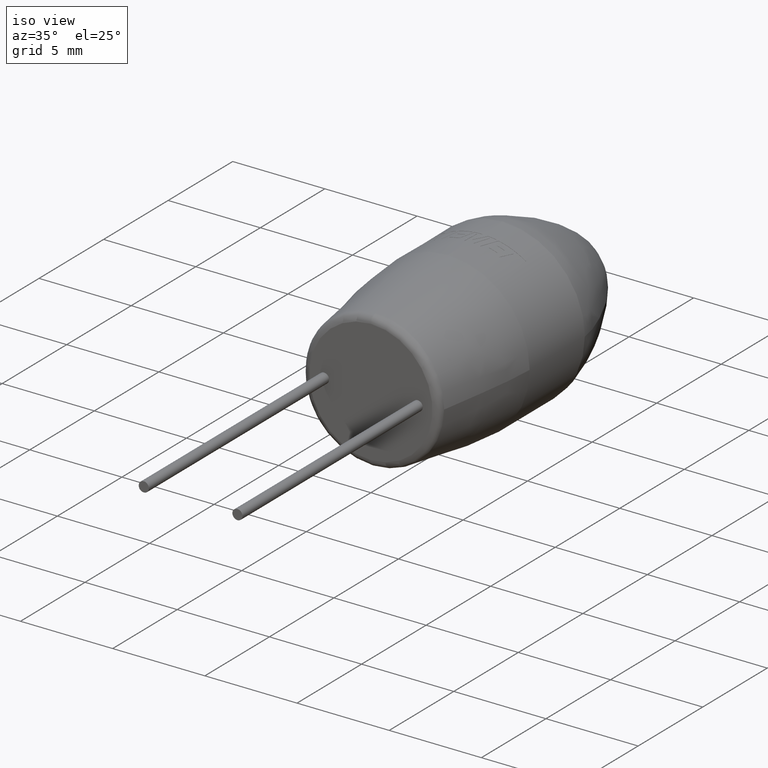
[diagram: clean part render]
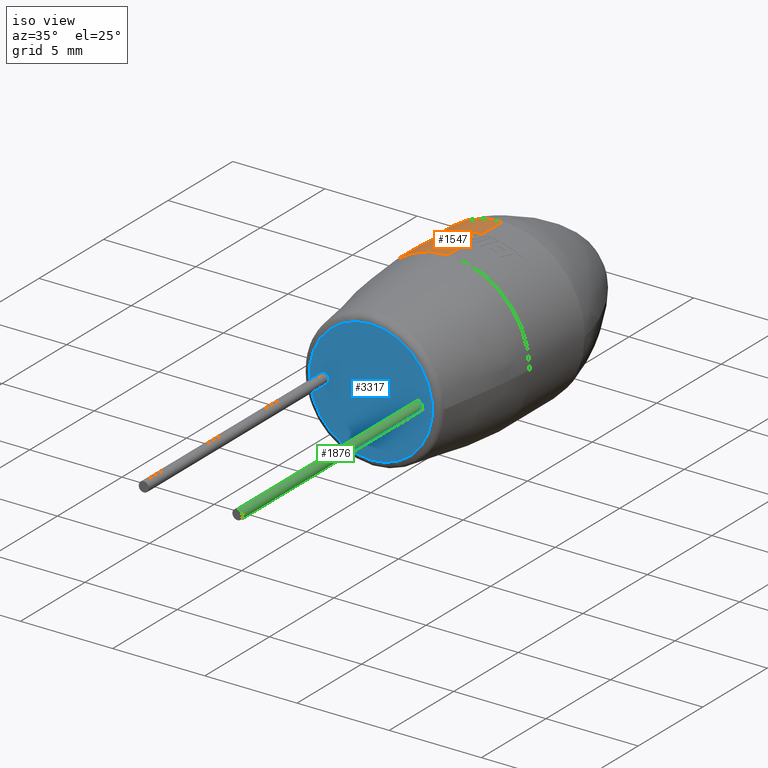
[diagram: same view with three faces highlighted in distinct colors, each labeled with its STEP entity id]
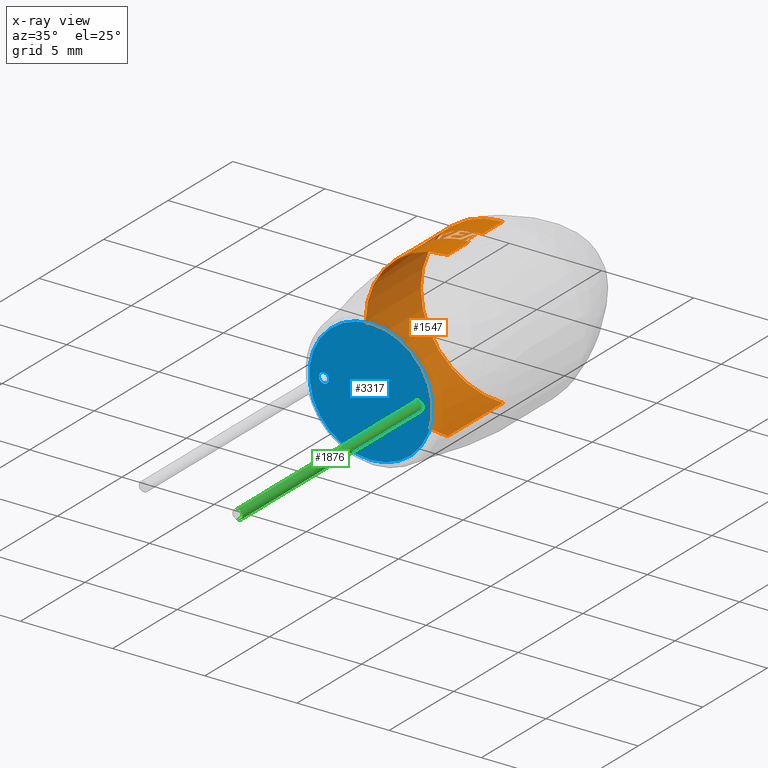
[diagram: x-ray of the same camera — body ghosted, the three highlighted faces saturated]
A machine part, iso view with three faces highlighted in distinct colors.
The next image is the same camera in x-ray (body ghosted, the three faces saturated) — at least one of them is partly hidden behind the body in this view.
Their STEP definitions:

[orange] entity #1547 — the highlighted cylindrical surface (partial cylindrical patch) has radius 4.45 mm, axis along (-0, -1, -0).
#33 = CARTESIAN_POINT ( 'NONE',  ( -0.5621267139184397100, 8.068629355989179100, 4.415045917660143500 ) ) ;
#45 = CARTESIAN_POINT ( 'NONE',  ( -0.6395254324789062500, 7.796533146831032800, 4.403805992685493100 ) ) ;
#47 = EDGE_CURVE ( 'NONE', #1267, #3529, #2072, .T. ) ;
#52 = ORIENTED_EDGE ( 'NONE', *, *, #1527, .F. ) ;
#58 = DIRECTION ( 'NONE',  ( -0.5562520025263191200, 0.0000000000000000000, 0.8310136639583370900 ) ) ;
#65 = DIRECTION ( 'NONE',  ( -0.3397254897050239800, 0.0000000000000000000, 0.9405246363836949900 ) ) ;
#80 = CIRCLE ( 'NONE', #2264, 4.450000000000001100 ) ;
#92 = AXIS2_PLACEMENT_3D ( 'NONE', #1377, #3136, #2502 ) ;
#104 = EDGE_CURVE ( 'NONE', #3537, #3347, #2660, .T. ) ;
#118 = DIRECTION ( 'NONE',  ( -0.4266863032263003000, 0.0000000000000000000, 0.9043996896500317000 ) ) ;
#132 = CARTESIAN_POINT ( 'NONE',  ( 0.0000000000000000000, 7.604746150764514200, 0.0000000000000000000 ) ) ;
#134 = CARTESIAN_POINT ( 'NONE',  ( -1.898754049357035800, 7.604746150764514200, 4.024578618942642000 ) ) ;
#139 = CARTESIAN_POINT ( 'NONE',  ( -1.698755351915376400, 8.612821759519611900, 4.112995289851285800 ) ) ;
#147 = LINE ( 'NONE', #283, #1661 ) ;
#152 = VERTEX_POINT ( 'NONE', #1389 ) ;
#178 = EDGE_CURVE ( 'NONE', #1137, #1852, #3292, .T. ) ;
#183 = DIRECTION ( 'NONE',  ( -0.0000000000000000000, -1.000000000000000000, -0.0000000000000000000 ) ) ;
#198 = CARTESIAN_POINT ( 'NONE',  ( -1.047900918710713600, 8.295938474304229300, 4.324897041241810000 ) ) ;
#218 = DIRECTION ( 'NONE',  ( -0.05594639297538302900, 0.0000000000000000000, 0.9984337740246189700 ) ) ;
#231 = AXIS2_PLACEMENT_3D ( 'NONE', #3198, #2949, #58 ) ;
#233 = CARTESIAN_POINT ( 'NONE',  ( -0.6395254324789062500, 7.796533146831032800, 4.403805992685493100 ) ) ;
#234 = EDGE_CURVE ( 'NONE', #1987, #1770, #147, .T. ) ;
#238 = LINE ( 'NONE', #927, #2197 ) ;
#240 = CARTESIAN_POINT ( 'NONE',  ( -0.4556739239771785400, 7.604746150764514200, 4.426608326360853800 ) ) ;
#251 = CARTESIAN_POINT ( 'NONE',  ( -1.387696346915203900, 8.612821759519613700, 4.228096362283882700 ) ) ;
#258 = EDGE_CURVE ( 'NONE', #3182, #1364, #3125, .T. ) ;
#271 = CARTESIAN_POINT ( 'NONE',  ( 0.0000000000000000000, 10.22080000000000200, -4.449999999999999300 ) ) ;
#282 = CARTESIAN_POINT ( 'NONE',  ( -2.232141772075821900, 7.604746150764514200, 3.849680910069588800 ) ) ;
#283 = CARTESIAN_POINT ( 'NONE',  ( 5.449678256205721800E-016, 16.00000000000000000, 4.450000000000000200 ) ) ;
#286 = DIRECTION ( 'NONE',  ( -0.0000000000000000000, -1.000000000000000000, -0.0000000000000000000 ) ) ;
#333 = CIRCLE ( 'NONE', #3342, 4.450000000000001100 ) ;
#338 = AXIS2_PLACEMENT_3D ( 'NONE', #3437, #1707, #3704 ) ;
#342 = ORIENTED_EDGE ( 'NONE', *, *, #3127, .F. ) ;
#351 = FACE_BOUND ( 'NONE', #972, .T. ) ;
#365 = VERTEX_POINT ( 'NONE', #2641 ) ;
#368 = CARTESIAN_POINT ( 'NONE',  ( -0.4065480998616298200, 8.612821759519611900, 4.431390147854157700 ) ) ;
#374 = DIRECTION ( 'NONE',  ( -0.2665297871592701200, 0.0000000000000000000, 0.9638266818037537500 ) ) ;
#381 = EDGE_CURVE ( 'NONE', #1364, #1814, #2843, .T. ) ;
#426 = VERTEX_POINT ( 'NONE', #3531 ) ;
#430 = CARTESIAN_POINT ( 'NONE',  ( -1.687521355683040800, 7.787198721629638800, 4.118311695557056700 ) ) ;
#447 = CARTESIAN_POINT ( 'NONE',  ( -0.6761975463489665600, 8.109198773325186200, 4.398360114732783500 ) ) ;
#457 = CARTESIAN_POINT ( 'NONE',  ( -1.030216690381572200, 8.358439108910648200, 4.329143601641802300 ) ) ;
#468 = DIRECTION ( 'NONE',  ( 0.0000000000000000000, 0.0000000000000000000, -1.000000000000000000 ) ) ;
#478 = ORIENTED_EDGE ( 'NONE', *, *, #3522, .F. ) ;
#482 = ORIENTED_EDGE ( 'NONE', *, *, #2189, .F. ) ;
#483 = CARTESIAN_POINT ( 'NONE',  ( -2.232141772075821900, 7.604746150764514200, 3.849680910069588800 ) ) ;
#488 = EDGE_CURVE ( 'NONE', #3529, #2733, #238, .T. ) ;
#520 = B_SPLINE_CURVE_WITH_KNOTS ( 'NONE', 3,
 ( #2146, #430, #724, #2736 ),
 .UNSPECIFIED., .F., .F.,
 ( 4, 4 ),
 ( 0.0000000000000000000, 1.000000000000000000 ),
 .UNSPECIFIED. ) ;
#592 = CARTESIAN_POINT ( 'NONE',  ( -1.898754049357035800, 7.604746150764514200, 4.024578618942642000 ) ) ;
#608 = ORIENTED_EDGE ( 'NONE', *, *, #258, .T. ) ;
#610 = DIRECTION ( 'NONE',  ( 0.0000000000000000000, 0.0000000000000000000, -1.000000000000000000 ) ) ;
#678 = CIRCLE ( 'NONE', #1124, 4.450000000000000200 ) ;
#719 = DIRECTION ( 'NONE',  ( 0.0000000000000000000, 0.0000000000000000000, -1.000000000000000000 ) ) ;
#723 = CARTESIAN_POINT ( 'NONE',  ( -1.328820224168002300, 8.276796542354757600, 4.248068578082507200 ) ) ;
#724 = CARTESIAN_POINT ( 'NONE',  ( -1.757278314460375600, 7.969651275844523900, 4.089033195411315300 ) ) ;
#726 = DIRECTION ( 'NONE',  ( 0.0000000000000000000, 0.0000000000000000000, -1.000000000000000000 ) ) ;
#735 = CARTESIAN_POINT ( 'NONE',  ( -1.420834840945337300, 7.940771367929372100, 4.218184228670634400 ) ) ;
#738 = FACE_OUTER_BOUND ( 'NONE', #1619, .T. ) ;
#804 = CARTESIAN_POINT ( 'NONE',  ( -1.976625395095432200, 8.612821759519611900, 3.986910087707499900 ) ) ;
#811 = AXIS2_PLACEMENT_3D ( 'NONE', #1891, #183, #2177 ) ;
#859 = DIRECTION ( 'NONE',  ( -0.0000000000000000000, -1.000000000000000000, -0.0000000000000000000 ) ) ;
#860 = CIRCLE ( 'NONE', #3489, 4.449999999999999300 ) ;
#876 = EDGE_CURVE ( 'NONE', #2389, #2911, #1918, .T. ) ;
#886 = EDGE_CURVE ( 'NONE', #2174, #2733, #678, .T. ) ;
#926 = ORIENTED_EDGE ( 'NONE', *, *, #3261, .T. ) ;
#927 = CARTESIAN_POINT ( 'NONE',  ( 0.0000000000000000000, 16.00000000000000000, -4.450000000000000200 ) ) ;
#935 = ORIENTED_EDGE ( 'NONE', *, *, #3194, .F. ) ;
#941 = B_SPLINE_CURVE_WITH_KNOTS ( 'NONE', 3,
 ( #2509, #2805, #1937, #251 ),
 .UNSPECIFIED., .F., .F.,
 ( 4, 4 ),
 ( 0.0000000000000000000, 1.000000000000000000 ),
 .UNSPECIFIED. ) ;
#954 = EDGE_CURVE ( 'NONE', #2452, #2389, #941, .T. ) ;
#966 = VECTOR ( 'NONE', #3006, 1000.000000000000000 ) ;
#968 = ORIENTED_EDGE ( 'NONE', *, *, #178, .F. ) ;
#972 = EDGE_LOOP ( 'NONE', ( #2658, #935, #2160, #2783, #968, #478, #1237, #1323, #1247, #2771, #1315 ) ) ;
#987 = ORIENTED_EDGE ( 'NONE', *, *, #104, .T. ) ;
#1018 = ORIENTED_EDGE ( 'NONE', *, *, #1379, .F. ) ;
#1019 = DIRECTION ( 'NONE',  ( -0.0000000000000000000, -1.000000000000000000, -0.0000000000000000000 ) ) ;
#1022 = EDGE_CURVE ( 'NONE', #2498, #3347, #3694, .T. ) ;
#1040 = EDGE_CURVE ( 'NONE', #1987, #1267, #860, .T. ) ;
#1056 = DIRECTION ( 'NONE',  ( -0.0000000000000000000, -1.000000000000000000, -0.0000000000000000000 ) ) ;
#1061 = ORIENTED_EDGE ( 'NONE', *, *, #47, .T. ) ;
#1098 = DIRECTION ( 'NONE',  ( -0.0000000000000000000, -1.000000000000000000, -0.0000000000000000000 ) ) ;
#1124 = AXIS2_PLACEMENT_3D ( 'NONE', #2522, #3344, #2495 ) ;
#1137 = VERTEX_POINT ( 'NONE', #2490 ) ;
#1138 = DIRECTION ( 'NONE',  ( -0.0000000000000000000, -1.000000000000000000, -0.0000000000000000000 ) ) ;
#1160 = CARTESIAN_POINT ( 'NONE',  ( 0.0000000000000000000, 5.948800000000001200, 0.0000000000000000000 ) ) ;
#1162 = CIRCLE ( 'NONE', #92, 4.449999999999999300 ) ;
#1182 = B_SPLINE_CURVE_WITH_KNOTS ( 'NONE', 3,
 ( #2169, #1296, #3029, #2699 ),
 .UNSPECIFIED., .F., .F.,
 ( 4, 4 ),
 ( 0.0000000000000000000, 1.000000000000000000 ),
 .UNSPECIFIED. ) ;
#1188 = CARTESIAN_POINT ( 'NONE',  ( -2.086255536277329600, 8.182939345841527200, 3.930653614521660200 ) ) ;
#1196 = VERTEX_POINT ( 'NONE', #282 ) ;
#1206 = AXIS2_PLACEMENT_3D ( 'NONE', #2556, #286, #2272 ) ;
#1237 = ORIENTED_EDGE ( 'NONE', *, *, #1968, .F. ) ;
#1242 = CARTESIAN_POINT ( 'NONE',  ( -1.826243906166388900, 8.152103846709648500, 4.057996204432691400 ) ) ;
#1247 = ORIENTED_EDGE ( 'NONE', *, *, #954, .F. ) ;
#1267 = VERTEX_POINT ( 'NONE', #3178 ) ;
#1280 = EDGE_CURVE ( 'NONE', #2203, #2023, #2991, .T. ) ;
#1286 = VERTEX_POINT ( 'NONE', #2048 ) ;
#1294 = AXIS2_PLACEMENT_3D ( 'NONE', #1343, #2261, #1356 ) ;
#1296 = CARTESIAN_POINT ( 'NONE',  ( -1.830748289640348600, 8.469527434549709400, 4.058479372964973700 ) ) ;
#1303 = CARTESIAN_POINT ( 'NONE',  ( 5.449678256205721800E-016, 16.00000000000000000, 4.450000000000000200 ) ) ;
#1315 = ORIENTED_EDGE ( 'NONE', *, *, #2457, .T. ) ;
#1321 = EDGE_CURVE ( 'NONE', #1584, #2206, #2672, .T. ) ;
#1323 = ORIENTED_EDGE ( 'NONE', *, *, #876, .F. ) ;
#1326 = CARTESIAN_POINT ( 'NONE',  ( -1.065558450357199800, 8.233437839687640600, 4.320542233200869800 ) ) ;
#1343 = CARTESIAN_POINT ( 'NONE',  ( 0.0000000000000000000, 8.612821759519611900, 0.0000000000000000000 ) ) ;
#1344 = DIRECTION ( 'NONE',  ( -0.0000000000000000000, -1.000000000000000000, -0.0000000000000000000 ) ) ;
#1356 = DIRECTION ( 'NONE',  ( -0.2777370637765972400, 0.0000000000000000000, 0.9606571310331039100 ) ) ;
#1364 = VERTEX_POINT ( 'NONE', #3310 ) ;
#1377 = CARTESIAN_POINT ( 'NONE',  ( 0.0000000000000000000, 8.612821759519611900, 0.0000000000000000000 ) ) ;
#1379 = EDGE_CURVE ( 'NONE', #3085, #1814, #2822, .T. ) ;
#1389 = CARTESIAN_POINT ( 'NONE',  ( -1.065558450357199800, 8.233437839687640600, 4.320542233200869800 ) ) ;
#1398 = CARTESIAN_POINT ( 'NONE',  ( 5.449678256205721800E-016, 7.604746150764514200, 4.450000000000000200 ) ) ;
#1406 = CARTESIAN_POINT ( 'NONE',  ( -0.5606697076283740900, 8.420939743527235100, 4.414538421958508400 ) ) ;
#1419 = CARTESIAN_POINT ( 'NONE',  ( -0.5606697076283740900, 8.420939743527235100, 4.414538421958508400 ) ) ;
#1441 = CARTESIAN_POINT ( 'NONE',  ( -0.6937238007929713600, 8.047079240139549200, 4.395594076824354900 ) ) ;
#1483 = VERTEX_POINT ( 'NONE', #3051 ) ;
#1485 = EDGE_CURVE ( 'NONE', #152, #3229, #1636, .T. ) ;
#1493 = CARTESIAN_POINT ( 'NONE',  ( 0.0000000000000000000, 7.604746150764514200, 0.0000000000000000000 ) ) ;
#1500 = CYLINDRICAL_SURFACE ( 'NONE', #2423, 4.450000000000000200 ) ;
#1505 = DIRECTION ( 'NONE',  ( -0.0000000000000000000, -1.000000000000000000, -0.0000000000000000000 ) ) ;
#1525 = CARTESIAN_POINT ( 'NONE',  ( -1.186057552858750700, 7.796533146831032800, 4.289028734026704400 ) ) ;
#1527 = EDGE_CURVE ( 'NONE', #2721, #152, #2670, .T. ) ;
#1533 = CARTESIAN_POINT ( 'NONE',  ( -2.475321411242119600, 7.604746150764514200, 3.698010804614599400 ) ) ;
#1535 = CARTESIAN_POINT ( 'NONE',  ( -1.117102663520527000, 8.047079240139549200, 4.307502947086089900 ) ) ;
#1537 = ORIENTED_EDGE ( 'NONE', *, *, #1922, .F. ) ;
#1541 = CARTESIAN_POINT ( 'NONE',  ( -0.6410966621337211800, 8.233437839687640600, 4.403577530803904200 ) ) ;
#1547 = ADVANCED_FACE ( 'NONE', ( #738, #351 ), #1500, .T. ) ;
#1569 = CARTESIAN_POINT ( 'NONE',  ( 5.449678256205721800E-016, 10.22080000000000200, 4.449999999999999300 ) ) ;
#1578 = CARTESIAN_POINT ( 'NONE',  ( -1.511778429187356800, 7.604746150764514200, 4.185334631907442900 ) ) ;
#1584 = VERTEX_POINT ( 'NONE', #233 ) ;
#1597 = CARTESIAN_POINT ( 'NONE',  ( -0.1987200116109789400, 8.502209368167374500, 4.445560747193241900 ) ) ;
#1602 = CARTESIAN_POINT ( 'NONE',  ( -0.3702294674743352700, 7.903900564432735400, 4.435403956763680700 ) ) ;
#1619 = EDGE_LOOP ( 'NONE', ( #2181, #3160, #1061, #2123, #3593, #2162, #2265, #987, #2951, #2134, #608, #2946, #1018, #482, #342, #2637, #3683, #52, #2998, #926, #1537, #3257, #2802, #2762 ) ) ;
#1636 = B_SPLINE_CURVE_WITH_KNOTS ( 'NONE', 3,
 ( #1326, #198, #457, #2772 ),
 .UNSPECIFIED., .F., .F.,
 ( 4, 4 ),
 ( 0.0000000000000000000, 1.000000000000000000 ),
 .UNSPECIFIED. ) ;
#1652 = CARTESIAN_POINT ( 'NONE',  ( -2.475321411242119600, 7.604746150764514200, 3.698010804614599400 ) ) ;
#1661 = VECTOR ( 'NONE', #859, 1000.000000000000000 ) ;
#1677 = DIRECTION ( 'NONE',  ( -0.2510343064091071200, 0.0000000000000000000, 0.9679781903564245200 ) ) ;
#1678 = B_SPLINE_CURVE_WITH_KNOTS ( 'NONE', 3,
 ( #1829, #3549, #2692, #1533 ),
 .UNSPECIFIED., .F., .F.,
 ( 4, 4 ),
 ( 0.0000000000000000000, 1.000000000000000000 ),
 .UNSPECIFIED. ) ;
#1701 = AXIS2_PLACEMENT_3D ( 'NONE', #1160, #3172, #610 ) ;
#1707 = DIRECTION ( 'NONE',  ( -0.0000000000000000000, -1.000000000000000000, -0.0000000000000000000 ) ) ;
#1770 = VERTEX_POINT ( 'NONE', #2233 ) ;
#1814 = VERTEX_POINT ( 'NONE', #2848 ) ;
#1829 = CARTESIAN_POINT ( 'NONE',  ( -2.229500193622778500, 8.612821759519611900, 3.851211353150589800 ) ) ;
#1836 = CARTESIAN_POINT ( 'NONE',  ( -0.6937238007929713600, 8.047079240139549200, 4.395594076824354900 ) ) ;
#1852 = VERTEX_POINT ( 'NONE', #2295 ) ;
#1891 = CARTESIAN_POINT ( 'NONE',  ( 0.0000000000000000000, 8.612821759519611900, 0.0000000000000000000 ) ) ;
#1918 = CIRCLE ( 'NONE', #811, 4.449999999999999300 ) ;
#1922 = EDGE_CURVE ( 'NONE', #2206, #365, #2508, .T. ) ;
#1937 = CARTESIAN_POINT ( 'NONE',  ( -1.536740987953565600, 8.459248823334821300, 4.179178673051156400 ) ) ;
#1968 = EDGE_CURVE ( 'NONE', #2911, #2342, #1182, .T. ) ;
#1984 = CARTESIAN_POINT ( 'NONE',  ( -0.5426482965219773200, 8.484900415528002800, 4.416827236400764400 ) ) ;
#1987 = VERTEX_POINT ( 'NONE', #1569 ) ;
#2011 = EDGE_CURVE ( 'NONE', #3537, #1286, #3380, .T. ) ;
#2023 = VERTEX_POINT ( 'NONE', #134 ) ;
#2034 = AXIS2_PLACEMENT_3D ( 'NONE', #3329, #1344, #2192 ) ;
#2036 = CARTESIAN_POINT ( 'NONE',  ( -2.095062981416983700, 8.152103846709637800, 3.925966263723643200 ) ) ;
#2048 = CARTESIAN_POINT ( 'NONE',  ( 5.449678256205721800E-016, 5.948800000000001200, 4.450000000000000200 ) ) ;
#2051 = AXIS2_PLACEMENT_3D ( 'NONE', #1493, #1505, #65 ) ;
#2069 = CARTESIAN_POINT ( 'NONE',  ( 0.0000000000000000000, 7.796533146831032800, 0.0000000000000000000 ) ) ;
#2070 = EDGE_CURVE ( 'NONE', #3597, #2721, #3611, .T. ) ;
#2072 = CIRCLE ( 'NONE', #2760, 4.449999999999999300 ) ;
#2105 = CARTESIAN_POINT ( 'NONE',  ( -0.2489614487404544800, 7.604746150764514200, 4.443030294409554800 ) ) ;
#2115 = EDGE_CURVE ( 'NONE', #1483, #2452, #520, .T. ) ;
#2117 = CARTESIAN_POINT ( 'NONE',  ( -1.140136528040980300, 7.963563875690619300, 4.301529372204527100 ) ) ;
#2123 = ORIENTED_EDGE ( 'NONE', *, *, #488, .T. ) ;
#2134 = ORIENTED_EDGE ( 'NONE', *, *, #2165, .F. ) ;
#2146 = CARTESIAN_POINT ( 'NONE',  ( -1.617063647199739500, 7.604746150764514200, 4.145793670807205600 ) ) ;
#2149 = CIRCLE ( 'NONE', #1701, 4.450000000000000200 ) ;
#2160 = ORIENTED_EDGE ( 'NONE', *, *, #3369, .T. ) ;
#2162 = ORIENTED_EDGE ( 'NONE', *, *, #2782, .F. ) ;
#2165 = EDGE_CURVE ( 'NONE', #3182, #2498, #2444, .T. ) ;
#2169 = CARTESIAN_POINT ( 'NONE',  ( -1.698755351915376400, 8.612821759519611900, 4.112995289851285800 ) ) ;
#2174 = VERTEX_POINT ( 'NONE', #2459 ) ;
#2177 = DIRECTION ( 'NONE',  ( -0.3817427757113205900, 0.0000000000000000000, 0.9242686044609632600 ) ) ;
#2178 = CARTESIAN_POINT ( 'NONE',  ( 0.0000000000000000000, 16.00000000000000000, 0.0000000000000000000 ) ) ;
#2181 = ORIENTED_EDGE ( 'NONE', *, *, #234, .F. ) ;
#2189 = EDGE_CURVE ( 'NONE', #426, #3085, #2895, .T. ) ;
#2192 = DIRECTION ( 'NONE',  ( -0.2394513371589214700, 0.0000000000000000000, 0.9709083670114313500 ) ) ;
#2196 = CARTESIAN_POINT ( 'NONE',  ( 0.0000000000000000000, 7.604746150764514200, 0.0000000000000000000 ) ) ;
#2197 = VECTOR ( 'NONE', #3601, 1000.000000000000000 ) ;
#2203 = VERTEX_POINT ( 'NONE', #2806 ) ;
#2206 = VERTEX_POINT ( 'NONE', #3646 ) ;
#2211 = DIRECTION ( 'NONE',  ( -0.0000000000000000000, -1.000000000000000000, -0.0000000000000000000 ) ) ;
#2233 = CARTESIAN_POINT ( 'NONE',  ( 5.449678256205721800E-016, 8.612821759519611900, 4.450000000000000200 ) ) ;
#2261 = DIRECTION ( 'NONE',  ( -0.0000000000000000000, -1.000000000000000000, -0.0000000000000000000 ) ) ;
#2264 = AXIS2_PLACEMENT_3D ( 'NONE', #3131, #1098, #1677 ) ;
#2265 = ORIENTED_EDGE ( 'NONE', *, *, #2011, .F. ) ;
#2272 = DIRECTION ( 'NONE',  ( -0.2275296841592968100, 0.0000000000000000000, 0.9737711449957687800 ) ) ;
#2281 = VERTEX_POINT ( 'NONE', #1652 ) ;
#2282 = CARTESIAN_POINT ( 'NONE',  ( -0.5065647801187191900, 8.612821759519611900, 4.421073639235528300 ) ) ;
#2295 = CARTESIAN_POINT ( 'NONE',  ( -2.229500193622778500, 8.612821759519611900, 3.851211353150589800 ) ) ;
#2297 = CARTESIAN_POINT ( 'NONE',  ( -1.964988524721133200, 7.787198720698797600, 3.993329887034986500 ) ) ;
#2301 = B_SPLINE_CURVE_WITH_KNOTS ( 'NONE', 3,
 ( #483, #3354, #2479, #3390 ),
 .UNSPECIFIED., .F., .F.,
 ( 4, 4 ),
 ( 0.0000000000000000000, 1.000000000000000000 ),
 .UNSPECIFIED. ) ;
#2342 = VERTEX_POINT ( 'NONE', #1188 ) ;
#2389 = VERTEX_POINT ( 'NONE', #3216 ) ;
#2416 = CARTESIAN_POINT ( 'NONE',  ( -1.235929933805857400, 8.612821759519611900, 4.274924233097312500 ) ) ;
#2423 = AXIS2_PLACEMENT_3D ( 'NONE', #2178, #3345, #468 ) ;
#2432 = CARTESIAN_POINT ( 'NONE',  ( -0.4065480998616298200, 8.612821759519611900, 4.431390147854157700 ) ) ;
#2440 = AXIS2_PLACEMENT_3D ( 'NONE', #2196, #2211, #218 ) ;
#2444 = B_SPLINE_CURVE_WITH_KNOTS ( 'NONE', 3,
 ( #240, #1602, #2807, #2759 ),
 .UNSPECIFIED., .F., .F.,
 ( 4, 4 ),
 ( 0.0000000000000000000, 1.000000000000000000 ),
 .UNSPECIFIED. ) ;
#2452 = VERTEX_POINT ( 'NONE', #1242 ) ;
#2457 = EDGE_CURVE ( 'NONE', #1483, #2023, #333, .T. ) ;
#2459 = CARTESIAN_POINT ( 'NONE',  ( -4.450000000000000200, 5.948800000000001200, 5.449678256205721800E-016 ) ) ;
#2479 = CARTESIAN_POINT ( 'NONE',  ( -2.141199417015248400, 7.969651280737313200, 3.901345894667089800 ) ) ;
#2490 = CARTESIAN_POINT ( 'NONE',  ( -1.976625395095432200, 8.612821759519611900, 3.986910087707499900 ) ) ;
#2495 = DIRECTION ( 'NONE',  ( 0.0000000000000000000, 0.0000000000000000000, -1.000000000000000000 ) ) ;
#2498 = VERTEX_POINT ( 'NONE', #1597 ) ;
#2502 = DIRECTION ( 'NONE',  ( -0.09135912356441142100, 0.0000000000000000000, 0.9958180107537434300 ) ) ;
#2508 = B_SPLINE_CURVE_WITH_KNOTS ( 'NONE', 3,
 ( #1525, #3258, #2117, #1535 ),
 .UNSPECIFIED., .F., .F.,
 ( 4, 4 ),
 ( 0.0000000000000000000, 1.000000000000000000 ),
 .UNSPECIFIED. ) ;
#2509 = CARTESIAN_POINT ( 'NONE',  ( -1.826243906166388900, 8.152103846709648500, 4.057996204432691400 ) ) ;
#2522 = CARTESIAN_POINT ( 'NONE',  ( 0.0000000000000000000, 5.948800000000001200, 0.0000000000000000000 ) ) ;
#2556 = CARTESIAN_POINT ( 'NONE',  ( 0.0000000000000000000, 8.420939743527235100, 0.0000000000000000000 ) ) ;
#2576 = CARTESIAN_POINT ( 'NONE',  ( -2.030451418221034900, 7.969651276775357100, 3.960445748551137500 ) ) ;
#2627 = DIRECTION ( 'NONE',  ( -0.0000000000000000000, -1.000000000000000000, -0.0000000000000000000 ) ) ;
#2637 = ORIENTED_EDGE ( 'NONE', *, *, #3108, .T. ) ;
#2641 = CARTESIAN_POINT ( 'NONE',  ( -1.117102663520527000, 8.047079240139549200, 4.307502947086089900 ) ) ;
#2658 = ORIENTED_EDGE ( 'NONE', *, *, #1280, .F. ) ;
#2660 = CIRCLE ( 'NONE', #2440, 4.450000000000000200 ) ;
#2670 = CIRCLE ( 'NONE', #2034, 4.450000000000000200 ) ;
#2672 = CIRCLE ( 'NONE', #3224, 4.449999999999999300 ) ;
#2692 = CARTESIAN_POINT ( 'NONE',  ( -2.395072219141086000, 7.940771367820630600, 3.751726857362388800 ) ) ;
#2699 = CARTESIAN_POINT ( 'NONE',  ( -2.086255536277329600, 8.182939345841527200, 3.930653614521660200 ) ) ;
#2721 = VERTEX_POINT ( 'NONE', #1541 ) ;
#2726 = CARTESIAN_POINT ( 'NONE',  ( 0.0000000000000000000, 10.22080000000000200, 0.0000000000000000000 ) ) ;
#2733 = VERTEX_POINT ( 'NONE', #2985 ) ;
#2736 = CARTESIAN_POINT ( 'NONE',  ( -1.826243906166388900, 8.152103846709648500, 4.057996204432691400 ) ) ;
#2759 = CARTESIAN_POINT ( 'NONE',  ( -0.1987200116109789400, 8.502209368167374500, 4.445560747193241900 ) ) ;
#2760 = AXIS2_PLACEMENT_3D ( 'NONE', #2726, #1019, #726 ) ;
#2762 = ORIENTED_EDGE ( 'NONE', *, *, #3472, .F. ) ;
#2771 = ORIENTED_EDGE ( 'NONE', *, *, #2115, .F. ) ;
#2772 = CARTESIAN_POINT ( 'NONE',  ( -1.012507094508870800, 8.420939743527235100, 4.333281595231171400 ) ) ;
#2781 = CARTESIAN_POINT ( 'NONE',  ( 0.0000000000000000000, 10.22080000000000200, 0.0000000000000000000 ) ) ;
#2782 = EDGE_CURVE ( 'NONE', #1286, #2174, #2149, .T. ) ;
#2783 = ORIENTED_EDGE ( 'NONE', *, *, #2906, .F. ) ;
#2799 = CARTESIAN_POINT ( 'NONE',  ( -2.049974125182936600, 8.326233483930764100, 3.949910537716314200 ) ) ;
#2802 = ORIENTED_EDGE ( 'NONE', *, *, #3376, .F. ) ;
#2805 = CARTESIAN_POINT ( 'NONE',  ( -1.683195466443033100, 8.305676782894439100, 4.122373135353925000 ) ) ;
#2806 = CARTESIAN_POINT ( 'NONE',  ( -2.095062981416983700, 8.152103846709637800, 3.925966263723643200 ) ) ;
#2807 = CARTESIAN_POINT ( 'NONE',  ( -0.2845302965716567400, 8.203054954499155100, 4.441724960935119700 ) ) ;
#2822 = B_SPLINE_CURVE_WITH_KNOTS ( 'NONE', 3,
 ( #2416, #723, #735, #1578 ),
 .UNSPECIFIED., .F., .F.,
 ( 4, 4 ),
 ( 0.0000000000000000000, 1.000000000000000000 ),
 .UNSPECIFIED. ) ;
#2826 = CARTESIAN_POINT ( 'NONE',  ( -2.013426074594152100, 8.469527621430376700, 3.968665091945439800 ) ) ;
#2830 = CARTESIAN_POINT ( 'NONE',  ( -0.4556739239771785400, 7.604746150764514200, 4.426608326360853800 ) ) ;
#2843 = CIRCLE ( 'NONE', #2051, 4.450000000000000200 ) ;
#2848 = CARTESIAN_POINT ( 'NONE',  ( -1.511778429187356800, 7.604746150764514200, 4.185334631907442900 ) ) ;
#2871 = CARTESIAN_POINT ( 'NONE',  ( -0.5246128698551239000, 8.548861087518849500, 4.419005696614588500 ) ) ;
#2877 = CIRCLE ( 'NONE', #1206, 4.450000000000000200 ) ;
#2879 = CARTESIAN_POINT ( 'NONE',  ( 0.0000000000000000000, 8.612821759519611900, 0.0000000000000000000 ) ) ;
#2895 = CIRCLE ( 'NONE', #1294, 4.450000000000001100 ) ;
#2906 = EDGE_CURVE ( 'NONE', #1852, #2281, #1678, .T. ) ;
#2911 = VERTEX_POINT ( 'NONE', #139 ) ;
#2946 = ORIENTED_EDGE ( 'NONE', *, *, #381, .T. ) ;
#2949 = DIRECTION ( 'NONE',  ( -0.0000000000000000000, -1.000000000000000000, -0.0000000000000000000 ) ) ;
#2951 = ORIENTED_EDGE ( 'NONE', *, *, #1022, .F. ) ;
#2958 = VERTEX_POINT ( 'NONE', #2432 ) ;
#2985 = CARTESIAN_POINT ( 'NONE',  ( 0.0000000000000000000, 5.948800000000001200, -4.450000000000000200 ) ) ;
#2991 = B_SPLINE_CURVE_WITH_KNOTS ( 'NONE', 3,
 ( #2036, #2576, #2297, #592 ),
 .UNSPECIFIED., .F., .F.,
 ( 4, 4 ),
 ( 0.0000000000000000000, 1.000000000000000000 ),
 .UNSPECIFIED. ) ;
#2998 = ORIENTED_EDGE ( 'NONE', *, *, #2070, .F. ) ;
#3006 = DIRECTION ( 'NONE',  ( -0.0000000000000000000, -1.000000000000000000, -0.0000000000000000000 ) ) ;
#3014 = CIRCLE ( 'NONE', #231, 4.450000000000000200 ) ;
#3029 = CARTESIAN_POINT ( 'NONE',  ( -1.960114249648536900, 8.326233670811431500, 3.997605064176297700 ) ) ;
#3051 = CARTESIAN_POINT ( 'NONE',  ( -1.617063647199739500, 7.604746150764514200, 4.145793670807205600 ) ) ;
#3085 = VERTEX_POINT ( 'NONE', #3091 ) ;
#3091 = CARTESIAN_POINT ( 'NONE',  ( -1.235929933805857400, 8.612821759519611900, 4.274924233097312500 ) ) ;
#3095 = CARTESIAN_POINT ( 'NONE',  ( -1.012507094508870800, 8.420939743527235100, 4.333281595231171400 ) ) ;
#3105 = B_SPLINE_CURVE_WITH_KNOTS ( 'NONE', 3,
 ( #3636, #2799, #2826, #804 ),
 .UNSPECIFIED., .F., .F.,
 ( 4, 4 ),
 ( 0.0000000000000000000, 1.000000000000000000 ),
 .UNSPECIFIED. ) ;
#3108 = EDGE_CURVE ( 'NONE', #3335, #3229, #2877, .T. ) ;
#3125 = CIRCLE ( 'NONE', #338, 4.450000000000001100 ) ;
#3127 = EDGE_CURVE ( 'NONE', #3335, #426, #3629, .T. ) ;
#3131 = CARTESIAN_POINT ( 'NONE',  ( 0.0000000000000000000, 8.047079240139549200, 0.0000000000000000000 ) ) ;
#3136 = DIRECTION ( 'NONE',  ( -0.0000000000000000000, -1.000000000000000000, -0.0000000000000000000 ) ) ;
#3154 = DIRECTION ( 'NONE',  ( -0.5010112794657929400, 0.0000000000000000000, 0.8654407535169864600 ) ) ;
#3160 = ORIENTED_EDGE ( 'NONE', *, *, #1040, .T. ) ;
#3172 = DIRECTION ( 'NONE',  ( -0.0000000000000000000, -1.000000000000000000, -0.0000000000000000000 ) ) ;
#3178 = CARTESIAN_POINT ( 'NONE',  ( -4.449999999999999300, 10.22080000000000200, 5.449678256205719800E-016 ) ) ;
#3182 = VERTEX_POINT ( 'NONE', #2830 ) ;
#3194 = EDGE_CURVE ( 'NONE', #1196, #2203, #2301, .T. ) ;
#3198 = CARTESIAN_POINT ( 'NONE',  ( 0.0000000000000000000, 7.604746150764514200, 0.0000000000000000000 ) ) ;
#3216 = CARTESIAN_POINT ( 'NONE',  ( -1.387696346915203900, 8.612821759519613700, 4.228096362283882700 ) ) ;
#3224 = AXIS2_PLACEMENT_3D ( 'NONE', #2069, #2627, #374 ) ;
#3229 = VERTEX_POINT ( 'NONE', #3095 ) ;
#3242 = CARTESIAN_POINT ( 'NONE',  ( -0.2322192489975062300, 7.903900556565937500, 4.443968429427078700 ) ) ;
#3251 = B_SPLINE_CURVE_WITH_KNOTS ( 'NONE', 3,
 ( #368, #3509, #33, #45 ),
 .UNSPECIFIED., .F., .F.,
 ( 4, 4 ),
 ( 0.0000000000000000000, 1.000000000000000000 ),
 .UNSPECIFIED. ) ;
#3257 = ORIENTED_EDGE ( 'NONE', *, *, #1321, .F. ) ;
#3258 = CARTESIAN_POINT ( 'NONE',  ( -1.163122477016089500, 7.880048511279961900, 4.295371037055073100 ) ) ;
#3261 = EDGE_CURVE ( 'NONE', #3597, #365, #80, .T. ) ;
#3288 = CARTESIAN_POINT ( 'NONE',  ( -0.6586547484628685300, 8.171318306502005400, 4.401021329519758200 ) ) ;
#3292 = CIRCLE ( 'NONE', #3655, 4.450000000000000200 ) ;
#3299 = CARTESIAN_POINT ( 'NONE',  ( -0.6410966621337211800, 8.233437839687640600, 4.403577530803904200 ) ) ;
#3310 = CARTESIAN_POINT ( 'NONE',  ( -0.6337463706499150100, 7.604746150764514200, 4.404641363117781900 ) ) ;
#3329 = CARTESIAN_POINT ( 'NONE',  ( 0.0000000000000000000, 8.233437839687640600, 0.0000000000000000000 ) ) ;
#3335 = VERTEX_POINT ( 'NONE', #1406 ) ;
#3342 = AXIS2_PLACEMENT_3D ( 'NONE', #132, #3552, #118 ) ;
#3344 = DIRECTION ( 'NONE',  ( -0.0000000000000000000, -1.000000000000000000, -0.0000000000000000000 ) ) ;
#3345 = DIRECTION ( 'NONE',  ( -0.0000000000000000000, -1.000000000000000000, -0.0000000000000000000 ) ) ;
#3347 = VERTEX_POINT ( 'NONE', #3413 ) ;
#3354 = CARTESIAN_POINT ( 'NONE',  ( -2.186901812419918700, 7.787198716736833500, 3.875912176004078000 ) ) ;
#3369 = EDGE_CURVE ( 'NONE', #1196, #2281, #3014, .T. ) ;
#3376 = EDGE_CURVE ( 'NONE', #2958, #1584, #3251, .T. ) ;
#3380 = LINE ( 'NONE', #1303, #966 ) ;
#3390 = CARTESIAN_POINT ( 'NONE',  ( -2.095062981416983700, 8.152103846709637800, 3.925966263723643200 ) ) ;
#3413 = CARTESIAN_POINT ( 'NONE',  ( -0.2489614487404544800, 7.604746150764514200, 4.443030294409554800 ) ) ;
#3437 = CARTESIAN_POINT ( 'NONE',  ( 0.0000000000000000000, 7.604746150764514200, 0.0000000000000000000 ) ) ;
#3469 = CARTESIAN_POINT ( 'NONE',  ( -0.1987200116109789400, 8.502209368167374500, 4.445560747193241900 ) ) ;
#3472 = EDGE_CURVE ( 'NONE', #1770, #2958, #1162, .T. ) ;
#3489 = AXIS2_PLACEMENT_3D ( 'NONE', #2781, #1056, #719 ) ;
#3509 = CARTESIAN_POINT ( 'NONE',  ( -0.4844316214007425300, 8.340725550361462100, 4.424244896220741900 ) ) ;
#3522 = EDGE_CURVE ( 'NONE', #2342, #1137, #3105, .T. ) ;
#3529 = VERTEX_POINT ( 'NONE', #271 ) ;
#3531 = CARTESIAN_POINT ( 'NONE',  ( -0.5065647801187191900, 8.612821759519611900, 4.421073639235528300 ) ) ;
#3537 = VERTEX_POINT ( 'NONE', #1398 ) ;
#3542 = CARTESIAN_POINT ( 'NONE',  ( -0.2154717465907212100, 8.203054962365953900, 4.444811931653654300 ) ) ;
#3549 = CARTESIAN_POINT ( 'NONE',  ( -2.313073935298978900, 8.276796542463495500, 3.802829777546737200 ) ) ;
#3552 = DIRECTION ( 'NONE',  ( -0.0000000000000000000, -1.000000000000000000, -0.0000000000000000000 ) ) ;
#3593 = ORIENTED_EDGE ( 'NONE', *, *, #886, .F. ) ;
#3597 = VERTEX_POINT ( 'NONE', #1441 ) ;
#3601 = DIRECTION ( 'NONE',  ( -0.0000000000000000000, -1.000000000000000000, -0.0000000000000000000 ) ) ;
#3611 = B_SPLINE_CURVE_WITH_KNOTS ( 'NONE', 3,
 ( #1836, #447, #3288, #3299 ),
 .UNSPECIFIED., .F., .F.,
 ( 4, 4 ),
 ( 0.0000000000000000000, 1.000000000000000000 ),
 .UNSPECIFIED. ) ;
#3629 = B_SPLINE_CURVE_WITH_KNOTS ( 'NONE', 3,
 ( #1419, #1984, #2871, #2282 ),
 .UNSPECIFIED., .F., .F.,
 ( 4, 4 ),
 ( 0.0000000000000000000, 1.000000000000000000 ),
 .UNSPECIFIED. ) ;
#3636 = CARTESIAN_POINT ( 'NONE',  ( -2.086255536277329600, 8.182939345841527200, 3.930653614521660200 ) ) ;
#3646 = CARTESIAN_POINT ( 'NONE',  ( -1.186057552858750700, 7.796533146831032800, 4.289028734026704400 ) ) ;
#3655 = AXIS2_PLACEMENT_3D ( 'NONE', #2879, #1138, #3154 ) ;
#3683 = ORIENTED_EDGE ( 'NONE', *, *, #1485, .F. ) ;
#3694 = B_SPLINE_CURVE_WITH_KNOTS ( 'NONE', 3,
 ( #3469, #3542, #3242, #2105 ),
 .UNSPECIFIED., .F., .F.,
 ( 4, 4 ),
 ( 0.0000000000000000000, 1.000000000000000000 ),
 .UNSPECIFIED. ) ;
#3704 = DIRECTION ( 'NONE',  ( -0.1424149147527898600, 0.0000000000000000000, 0.9898070478916360900 ) ) ;

[blue] entity #3317 — the highlighted planar face has unit normal (0, 1, 0).
#48 = CARTESIAN_POINT ( 'NONE',  ( 2.540000000000000000, 0.0000000000000000000, -0.2750000000000002400 ) ) ;
#83 = CIRCLE ( 'NONE', #3444, 0.2750000000000002400 ) ;
#105 = VERTEX_POINT ( 'NONE', #2454 ) ;
#127 = VERTEX_POINT ( 'NONE', #2250 ) ;
#209 = EDGE_LOOP ( 'NONE', ( #1405, #873 ) ) ;
#306 = CARTESIAN_POINT ( 'NONE',  ( 0.0000000000000000000, 0.0000000000000000000, 0.0000000000000000000 ) ) ;
#371 = FACE_BOUND ( 'NONE', #3269, .T. ) ;
#389 = ORIENTED_EDGE ( 'NONE', *, *, #3103, .F. ) ;
#417 = DIRECTION ( 'NONE',  ( 0.0000000000000000000, 0.0000000000000000000, -1.000000000000000000 ) ) ;
#496 = CARTESIAN_POINT ( 'NONE',  ( -2.540000000000000000, 0.0000000000000000000, -0.2750000000000002400 ) ) ;
#570 = CARTESIAN_POINT ( 'NONE',  ( 0.0000000000000000000, 0.0000000000000000000, 0.0000000000000000000 ) ) ;
#708 = EDGE_CURVE ( 'NONE', #1545, #3295, #2838, .T. ) ;
#717 = FACE_BOUND ( 'NONE', #2396, .T. ) ;
#778 = EDGE_CURVE ( 'NONE', #2436, #105, #3199, .T. ) ;
#873 = ORIENTED_EDGE ( 'NONE', *, *, #3349, .T. ) ;
#884 = DIRECTION ( 'NONE',  ( 0.0000000000000000000, 0.0000000000000000000, 1.000000000000000000 ) ) ;
#907 = AXIS2_PLACEMENT_3D ( 'NONE', #570, #1992, #1727 ) ;
#1167 = DIRECTION ( 'NONE',  ( -0.0000000000000000000, -1.000000000000000000, -0.0000000000000000000 ) ) ;
#1354 = EDGE_CURVE ( 'NONE', #105, #2436, #1504, .T. ) ;
#1405 = ORIENTED_EDGE ( 'NONE', *, *, #3652, .T. ) ;
#1504 = CIRCLE ( 'NONE', #2813, 0.2750000000000002400 ) ;
#1545 = VERTEX_POINT ( 'NONE', #1600 ) ;
#1551 = DIRECTION ( 'NONE',  ( 0.0000000000000000000, 0.0000000000000000000, -1.000000000000000000 ) ) ;
#1600 = CARTESIAN_POINT ( 'NONE',  ( -2.540000000000000000, 0.0000000000000000000, 0.2750000000000002400 ) ) ;
#1618 = DIRECTION ( 'NONE',  ( 0.0000000000000000000, 0.0000000000000000000, 1.000000000000000000 ) ) ;
#1644 = CIRCLE ( 'NONE', #907, 3.338457330575872900 ) ;
#1689 = CARTESIAN_POINT ( 'NONE',  ( -2.540000000000000000, 0.0000000000000000000, 0.0000000000000000000 ) ) ;
#1691 = DIRECTION ( 'NONE',  ( 0.0000000000000000000, -0.0000000000000000000, 1.000000000000000000 ) ) ;
#1702 = DIRECTION ( 'NONE',  ( -0.0000000000000000000, -1.000000000000000000, -0.0000000000000000000 ) ) ;
#1714 = AXIS2_PLACEMENT_3D ( 'NONE', #2335, #1167, #884 ) ;
#1717 = PLANE ( 'NONE',  #1870 ) ;
#1727 = DIRECTION ( 'NONE',  ( 0.0000000000000000000, 0.0000000000000000000, 1.000000000000000000 ) ) ;
#1783 = ORIENTED_EDGE ( 'NONE', *, *, #708, .F. ) ;
#1870 = AXIS2_PLACEMENT_3D ( 'NONE', #1974, #2598, #1691 ) ;
#1944 = ORIENTED_EDGE ( 'NONE', *, *, #1354, .T. ) ;
#1974 = CARTESIAN_POINT ( 'NONE',  ( 0.0000000000000000000, 0.0000000000000000000, 0.0000000000000000000 ) ) ;
#1992 = DIRECTION ( 'NONE',  ( -0.0000000000000000000, -1.000000000000000000, -0.0000000000000000000 ) ) ;
#2101 = FACE_OUTER_BOUND ( 'NONE', #209, .T. ) ;
#2108 = CARTESIAN_POINT ( 'NONE',  ( 2.540000000000000000, 0.0000000000000000000, 0.0000000000000000000 ) ) ;
#2167 = ORIENTED_EDGE ( 'NONE', *, *, #778, .T. ) ;
#2250 = CARTESIAN_POINT ( 'NONE',  ( 0.0000000000000000000, 0.0000000000000000000, -3.338457330575872900 ) ) ;
#2294 = DIRECTION ( 'NONE',  ( 0.0000000000000000000, 0.0000000000000000000, 1.000000000000000000 ) ) ;
#2335 = CARTESIAN_POINT ( 'NONE',  ( -2.540000000000000000, 0.0000000000000000000, 0.0000000000000000000 ) ) ;
#2396 = EDGE_LOOP ( 'NONE', ( #1944, #2167 ) ) ;
#2403 = DIRECTION ( 'NONE',  ( -0.0000000000000000000, 1.000000000000000000, -0.0000000000000000000 ) ) ;
#2436 = VERTEX_POINT ( 'NONE', #48 ) ;
#2454 = CARTESIAN_POINT ( 'NONE',  ( 2.540000000000000000, 0.0000000000000000000, 0.2750000000000002400 ) ) ;
#2598 = DIRECTION ( 'NONE',  ( 0.0000000000000000000, 1.000000000000000000, 0.0000000000000000000 ) ) ;
#2730 = CARTESIAN_POINT ( 'NONE',  ( 4.329165237116910200E-016, 0.0000000000000000000, 3.338457330575872900 ) ) ;
#2813 = AXIS2_PLACEMENT_3D ( 'NONE', #2108, #2403, #1551 ) ;
#2838 = CIRCLE ( 'NONE', #1714, 0.2750000000000002400 ) ;
#2926 = VERTEX_POINT ( 'NONE', #2730 ) ;
#2980 = DIRECTION ( 'NONE',  ( -0.0000000000000000000, 1.000000000000000000, -0.0000000000000000000 ) ) ;
#2999 = AXIS2_PLACEMENT_3D ( 'NONE', #306, #1702, #2294 ) ;
#3059 = DIRECTION ( 'NONE',  ( -0.0000000000000000000, -1.000000000000000000, -0.0000000000000000000 ) ) ;
#3103 = EDGE_CURVE ( 'NONE', #3295, #1545, #83, .T. ) ;
#3199 = CIRCLE ( 'NONE', #3676, 0.2750000000000002400 ) ;
#3231 = CIRCLE ( 'NONE', #2999, 3.338457330575872900 ) ;
#3269 = EDGE_LOOP ( 'NONE', ( #1783, #389 ) ) ;
#3275 = CARTESIAN_POINT ( 'NONE',  ( 2.540000000000000000, 0.0000000000000000000, 0.0000000000000000000 ) ) ;
#3295 = VERTEX_POINT ( 'NONE', #496 ) ;
#3317 = ADVANCED_FACE ( 'NONE', ( #2101, #717, #371 ), #1717, .F. ) ;
#3349 = EDGE_CURVE ( 'NONE', #2926, #127, #3231, .T. ) ;
#3444 = AXIS2_PLACEMENT_3D ( 'NONE', #1689, #3059, #1618 ) ;
#3652 = EDGE_CURVE ( 'NONE', #127, #2926, #1644, .T. ) ;
#3676 = AXIS2_PLACEMENT_3D ( 'NONE', #3275, #2980, #417 ) ;

[green] entity #1876 — the highlighted cylindrical surface (edge-blend (fillet) strip) has radius 0.275 mm, axis along (-0, 1, -0).
#48 = CARTESIAN_POINT ( 'NONE',  ( 2.540000000000000000, 0.0000000000000000000, -0.2750000000000002400 ) ) ;
#54 = VECTOR ( 'NONE', #2088, 1000.000000000000000 ) ;
#105 = VERTEX_POINT ( 'NONE', #2454 ) ;
#439 = AXIS2_PLACEMENT_3D ( 'NONE', #780, #1319, #729 ) ;
#691 = FACE_OUTER_BOUND ( 'NONE', #3109, .T. ) ;
#729 = DIRECTION ( 'NONE',  ( 0.0000000000000000000, 0.0000000000000000000, -1.000000000000000000 ) ) ;
#780 = CARTESIAN_POINT ( 'NONE',  ( 2.540000000000000000, -13.96000000000000100, 0.0000000000000000000 ) ) ;
#1049 = CARTESIAN_POINT ( 'NONE',  ( 2.540000000000000000, -13.96000000000000100, -0.2750000000000002400 ) ) ;
#1154 = ORIENTED_EDGE ( 'NONE', *, *, #1568, .F. ) ;
#1166 = EDGE_CURVE ( 'NONE', #1557, #2436, #2405, .T. ) ;
#1308 = AXIS2_PLACEMENT_3D ( 'NONE', #3532, #2663, #1513 ) ;
#1319 = DIRECTION ( 'NONE',  ( -0.0000000000000000000, 1.000000000000000000, -0.0000000000000000000 ) ) ;
#1329 = ORIENTED_EDGE ( 'NONE', *, *, #1354, .F. ) ;
#1354 = EDGE_CURVE ( 'NONE', #105, #2436, #1504, .T. ) ;
#1504 = CIRCLE ( 'NONE', #2813, 0.2750000000000002400 ) ;
#1513 = DIRECTION ( 'NONE',  ( 0.0000000000000000000, 0.0000000000000000000, 1.000000000000000000 ) ) ;
#1551 = DIRECTION ( 'NONE',  ( 0.0000000000000000000, 0.0000000000000000000, -1.000000000000000000 ) ) ;
#1557 = VERTEX_POINT ( 'NONE', #1049 ) ;
#1568 = EDGE_CURVE ( 'NONE', #3341, #105, #3679, .T. ) ;
#1603 = CIRCLE ( 'NONE', #439, 0.2750000000000002400 ) ;
#1876 = ADVANCED_FACE ( 'NONE', ( #691 ), #3419, .T. ) ;
#1921 = DIRECTION ( 'NONE',  ( -0.0000000000000000000, 1.000000000000000000, -0.0000000000000000000 ) ) ;
#2088 = DIRECTION ( 'NONE',  ( -0.0000000000000000000, 1.000000000000000000, -0.0000000000000000000 ) ) ;
#2108 = CARTESIAN_POINT ( 'NONE',  ( 2.540000000000000000, 0.0000000000000000000, 0.0000000000000000000 ) ) ;
#2403 = DIRECTION ( 'NONE',  ( -0.0000000000000000000, 1.000000000000000000, -0.0000000000000000000 ) ) ;
#2405 = LINE ( 'NONE', #2426, #3530 ) ;
#2420 = CARTESIAN_POINT ( 'NONE',  ( 2.540000000000000000, -13.96000000000000100, 0.2750000000000002400 ) ) ;
#2426 = CARTESIAN_POINT ( 'NONE',  ( 2.540000000000000000, -13.96000000000000100, -0.2750000000000002400 ) ) ;
#2436 = VERTEX_POINT ( 'NONE', #48 ) ;
#2454 = CARTESIAN_POINT ( 'NONE',  ( 2.540000000000000000, 0.0000000000000000000, 0.2750000000000002400 ) ) ;
#2586 = CARTESIAN_POINT ( 'NONE',  ( 2.540000000000000000, -13.96000000000000100, 0.2750000000000002400 ) ) ;
#2663 = DIRECTION ( 'NONE',  ( -0.0000000000000000000, 1.000000000000000000, -0.0000000000000000000 ) ) ;
#2813 = AXIS2_PLACEMENT_3D ( 'NONE', #2108, #2403, #1551 ) ;
#2876 = ORIENTED_EDGE ( 'NONE', *, *, #1166, .T. ) ;
#3074 = EDGE_CURVE ( 'NONE', #3341, #1557, #1603, .T. ) ;
#3109 = EDGE_LOOP ( 'NONE', ( #3471, #2876, #1329, #1154 ) ) ;
#3341 = VERTEX_POINT ( 'NONE', #2586 ) ;
#3419 = CYLINDRICAL_SURFACE ( 'NONE', #1308, 0.2750000000000002400 ) ;
#3471 = ORIENTED_EDGE ( 'NONE', *, *, #3074, .T. ) ;
#3530 = VECTOR ( 'NONE', #1921, 1000.000000000000000 ) ;
#3532 = CARTESIAN_POINT ( 'NONE',  ( 2.540000000000000000, -13.96000000000000100, 0.0000000000000000000 ) ) ;
#3679 = LINE ( 'NONE', #2420, #54 ) ;